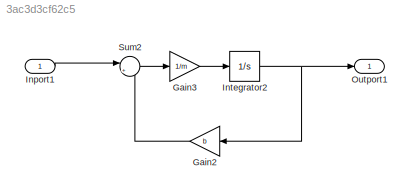
MODEL slx_3ac3d3cf62c5
KIND model
CONFIG AbsTol = auto
CONFIG EnableMultiTasking = off
CONFIG FixedStep = auto
CONFIG MaxStep = auto
CONFIG MinStep = auto
CONFIG RelTol = 1e-3
CONFIG SampleTimeConstraint = Unconstrained
CONFIG SolverName = VariableStepAuto
CONFIG StartTime = 0.0
CONFIG StopTime = 100
BLOCK [Gain] Gain2
  Gain = b
  NameLocation = top
BLOCK [Gain] Gain3
  Gain = 1/m
BLOCK [Inport] Inport1
BLOCK [Integrator] Integrator2
  Ports = [1, 1]
BLOCK [Outport] Outport1
BLOCK [Sum] Sum2
  Inputs = |+-
  Ports = [2, 1]
LINE Gain2:1 -> Sum2:2
LINE Gain3:1 -> Integrator2:1
LINE Inport1:1 -> Sum2:1
NET Integrator2:1 -> Gain2:1, Outport1:1
LINE Sum2:1 -> Gain3:1
note: NET lines group one-source signal fan-out (src -> all destinations, sorted); 1:1 wires keep LINE
